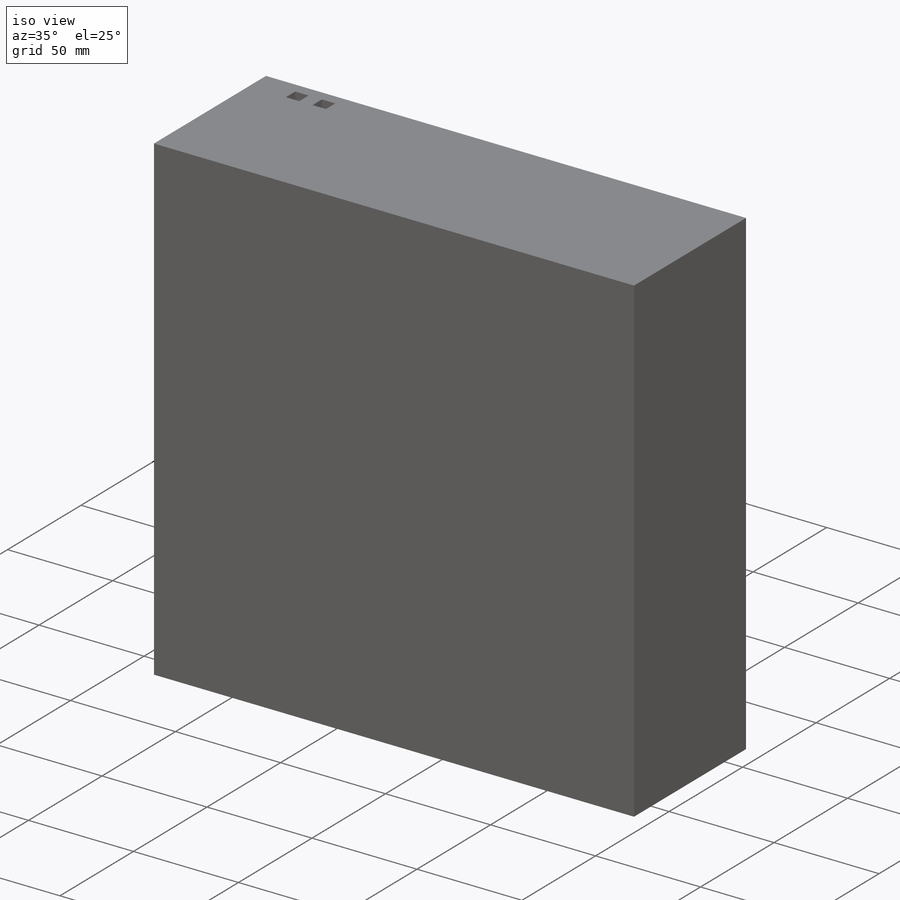
[diagram: iso view]
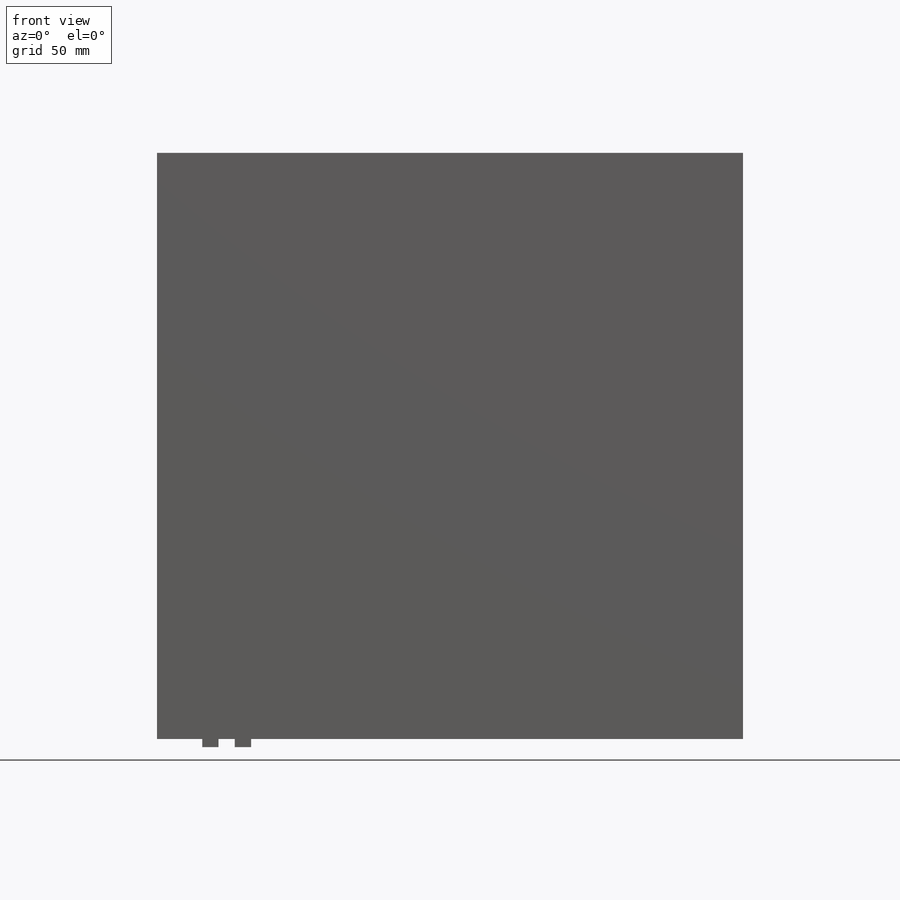
[diagram: front view]
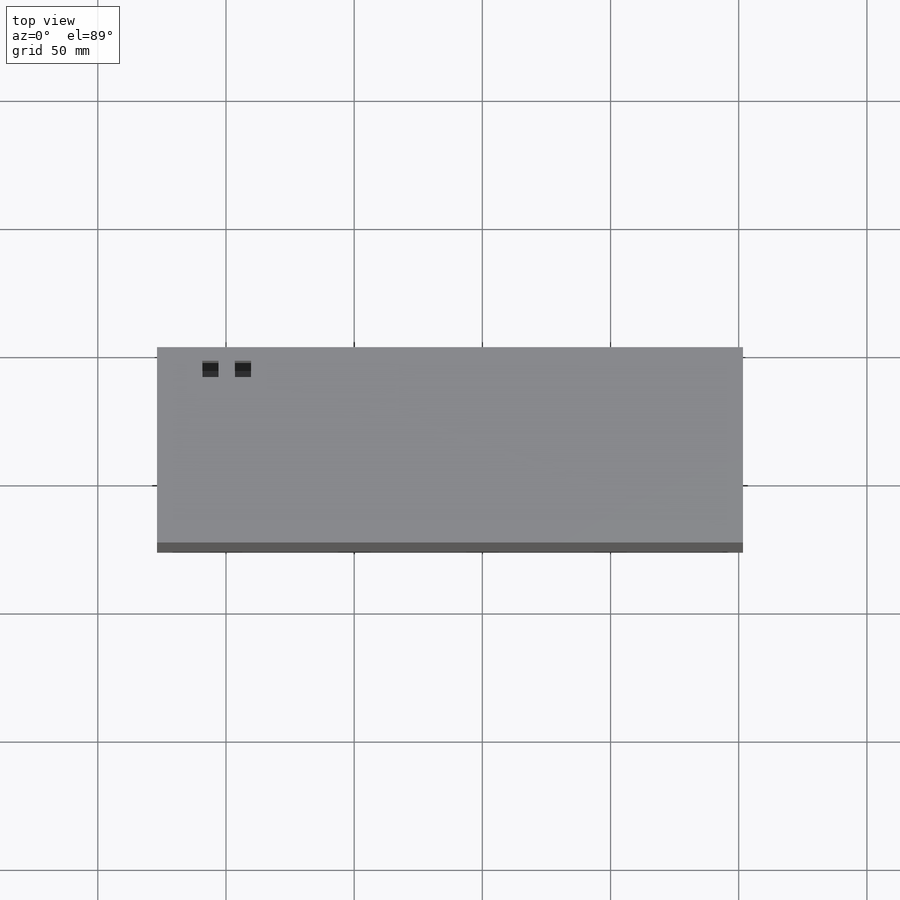
[diagram: top view]
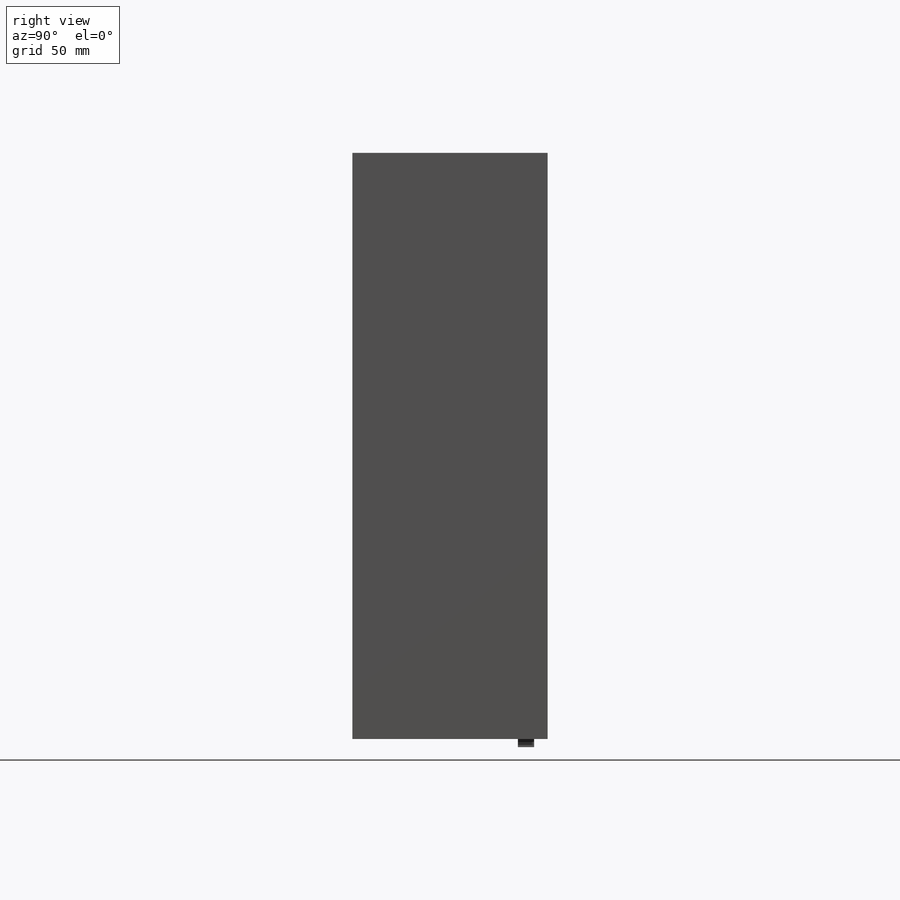
[diagram: right view]
SOLIDWORKS PART (.sldprt)
format: sldprt  version: not decoded by parser v0  size: 7,147,520 bytes
history: native  units: mm
features: sketch x7, extrude x4, cut_extrude x3, material x1 (+11 scaffold rows collapsed)
feature tree (26):
  scaffold x11  (default folders/planes/origin — collapsed)
  material  "Material <not specified>"
  sketch  "Sketch1"  dims[D1=228.6mm D2=228.6mm]
  extrude  "Boss-Extrude1"  Depth=73.025mm
  sketch  "Sketch2"  dims[D1=3.175mm D2=3.175mm D3=3.175mm D4=152.4mm]
  cut_extrude  "Cut-Extrude1"  Depth=3.175mm
  sketch  "Sketch4"  dims[D1=6.35mm D2=6.35mm D3=2.0]
  cut_extrude  "Cut-Extrude2"  [1 undecoded]
  sketch  "Sketch6"
  cut_extrude  "Cut-Extrude3"  Depth=0.254mm
  sketch  "Sketch7"
  extrude  "Boss-Extrude3"  Depth=3.175mm
  sketch  "Sketch8"
  extrude  "Boss-Extrude4"  Depth=0.254mm
  sketch  "Sketch3"
  extrude  "Boss-Extrude2"  Depth=3.175mm
decode coverage: 9 of 14 modeling features carry decoded parameters
note: 1 parameter value undecoded
note: suppression state not decoded; provenance and decode notes live in map.json
